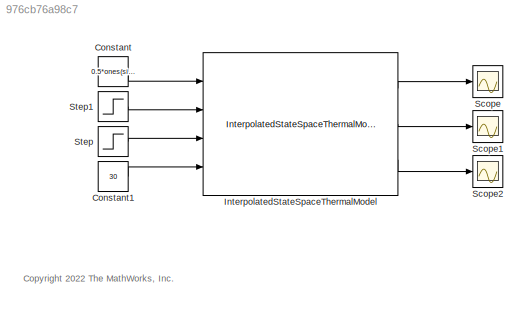
MODEL slx_976cb76a98c7
KIND model
CONFIG AbsTol = 1e-3
CONFIG EnableMultiTasking = off
CONFIG FixedStep = 0.2
CONFIG MaxStep = auto
CONFIG MinStep = auto
CONFIG RelTol = 1e-3
CONFIG SampleTimeConstraint = Unconstrained
CONFIG SolverName = VariableStepAuto
CONFIG StartTime = 0.0
CONFIG StopTime = 4000
BLOCK [Constant] Constant
  Value = 0.5*ones(size(TnodesInit))
BLOCK [Constant] Constant1
  Value = 30
BLOCK [Reference] InterpolatedStateSpaceThermalModel  REF=mcadROM_lib/InterpolatedStateSpaceThermalModel
  Ports = [4, 3]
  SourceBlock = mcadROM_lib/InterpolatedStateSpaceThermalModel
BLOCK [Scope] Scope
  Floating = off
  NumInputPorts = 1
  Ports = [1]
  ScopeSpecificationString = Simulink.scopes.TimeScopeBlockCfg('CurrentConfiguration', extmgr.ConfigurationSet(extmgr.Configuration('Core','General UI',true),extmgr.Configuration('Core','Source UI',true),extmgr.Configuration('Sources','WiredSimulink',true),extmgr.Configuration('Visuals','Time Domain',true,'SerializedDisplays',{struct('MinYLimReal','18.34291','MaxYLimReal','34.78697','YLabelReal','','MinYLimMag','18.34291','Ma...<+7457ch>
BLOCK [Scope] Scope1
  Floating = off
  NumInputPorts = 1
  Ports = [1]
  ScopeSpecificationString = Simulink.scopes.TimeScopeBlockCfg('CurrentConfiguration', extmgr.ConfigurationSet(extmgr.Configuration('Core','General UI',true),extmgr.Configuration('Core','Source UI',true),extmgr.Configuration('Sources','WiredSimulink',true,'DataLoggingVariableName','ScopeData1'),extmgr.Configuration('Visuals','Time Domain',true,'SerializedDisplays',{struct('MinYLimReal','0.4','MaxYLimReal','0.6','YLabelReal','...<+5946ch>
BLOCK [Scope] Scope2
  Floating = off
  NumInputPorts = 1
  Ports = [1]
  ScopeSpecificationString = Simulink.scopes.TimeScopeBlockCfg('CurrentConfiguration', extmgr.ConfigurationSet(extmgr.Configuration('Core','General UI',true),extmgr.Configuration('Core','Source UI',true),extmgr.Configuration('Sources','WiredSimulink',true,'DataLoggingVariableName','ScopeData2'),extmgr.Configuration('Visuals','Time Domain',true,'SerializedDisplays',{struct('MinYLimReal','18.73891','MaxYLimReal','31.34985','YLa...<+1401ch>
BLOCK [Step] Step
  After = 9
  Before = 5
  SampleTime = 0
  Time = 1000
BLOCK [Step] Step1
  After = 3000
  Before = 1000
  SampleTime = 0
  Time = 500
ANNOTATION (root): <copyright redacted>
LINE Constant1:1 -> InterpolatedStateSpaceThermalModel:4
LINE Constant:1 -> InterpolatedStateSpaceThermalModel:1
LINE InterpolatedStateSpaceThermalModel:1 -> Scope:1
LINE InterpolatedStateSpaceThermalModel:2 -> Scope1:1
LINE InterpolatedStateSpaceThermalModel:3 -> Scope2:1
LINE Step1:1 -> InterpolatedStateSpaceThermalModel:2
LINE Step:1 -> InterpolatedStateSpaceThermalModel:3
